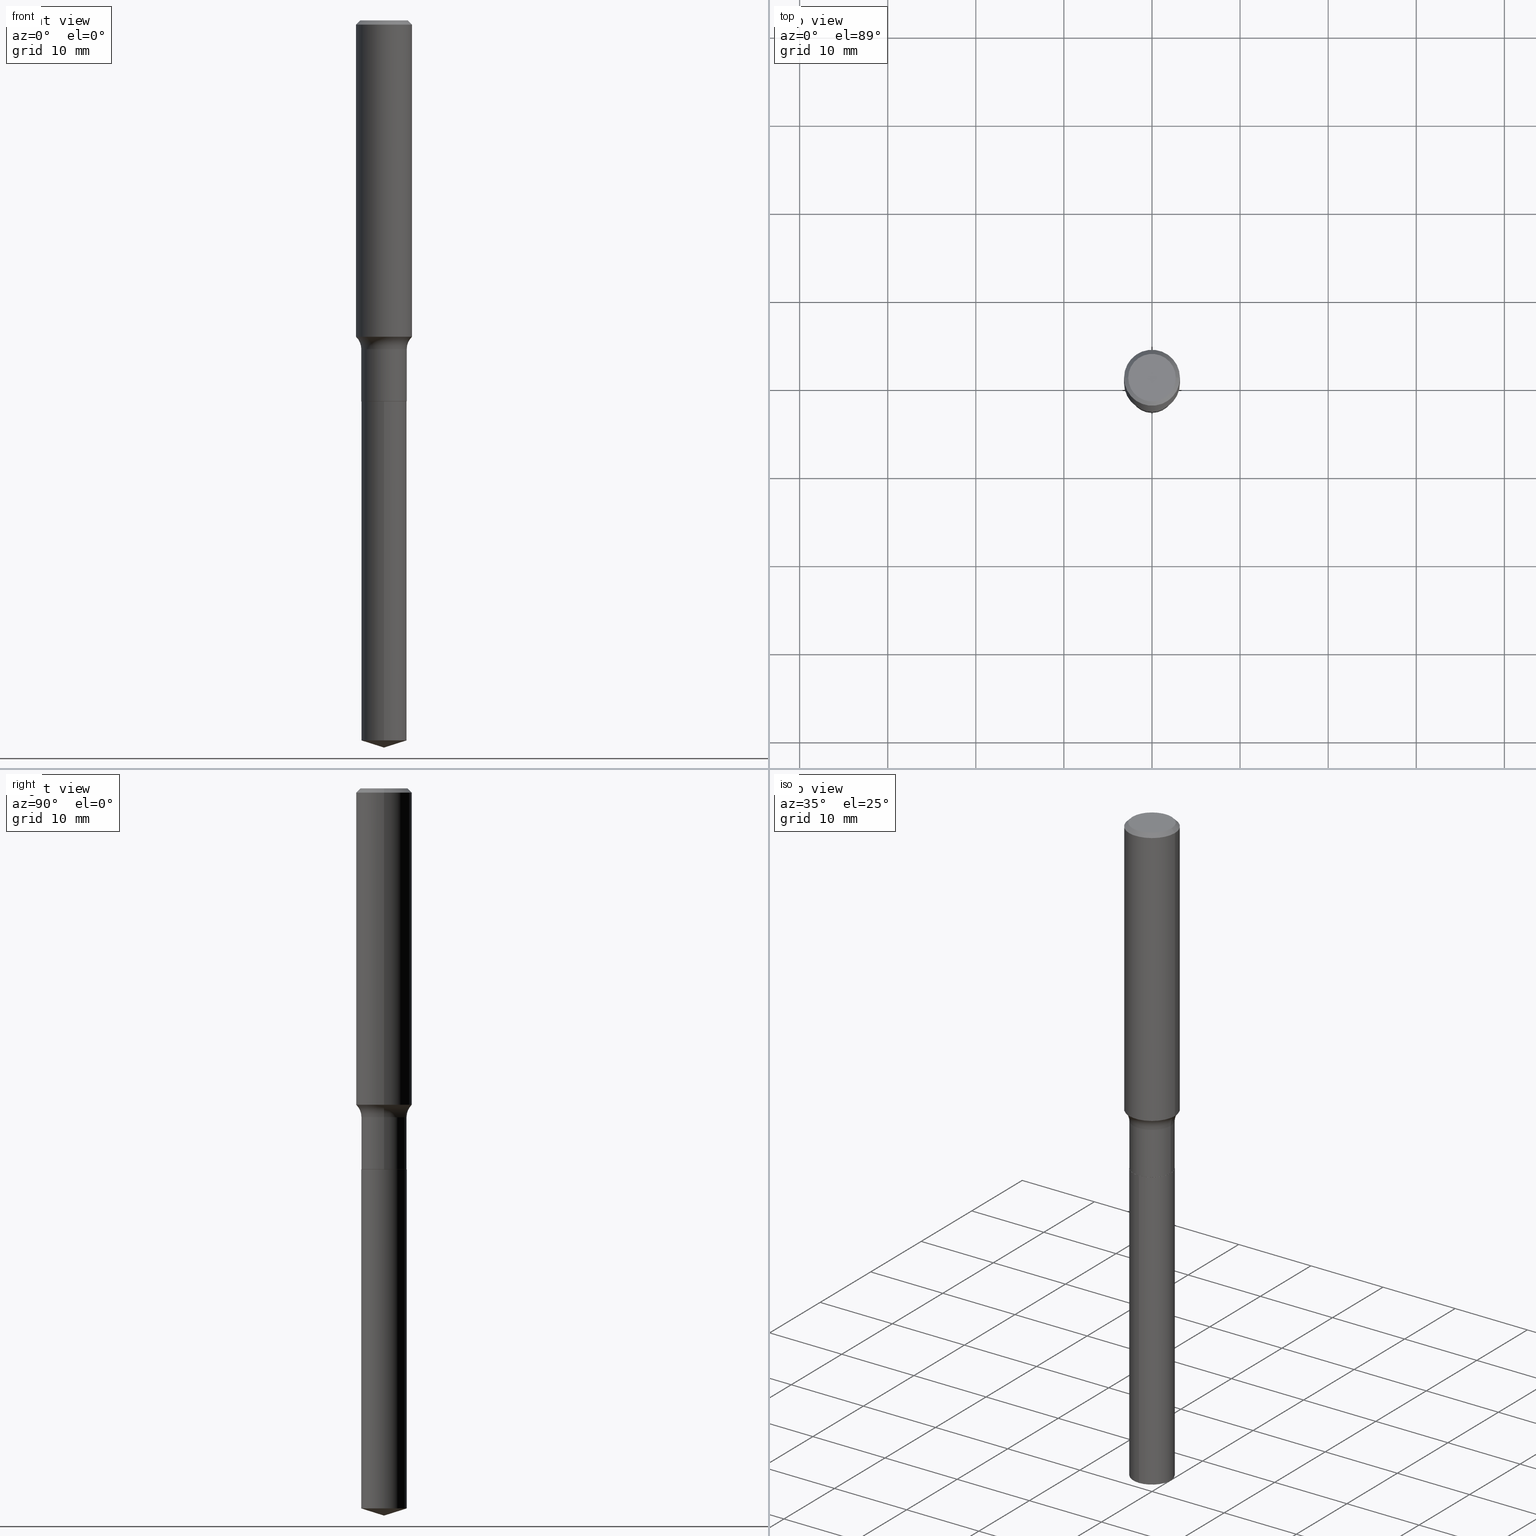
[diagram: canonical four-view strip — front | top / right | iso, engineering-drawing reading convention]
A machine part, canonical four-view strip (front | top / right | iso — engineering-drawing reading convention). The complete STEP part file that produces these views, byte-faithful:
ISO-10303-21;
HEADER;
FILE_DESCRIPTION (( 'STEP AP203' ),
    '1' );
FILE_NAME ('51507.STEP',
    '2024-04-19T12:54:41',
    ( '' ),
    ( '' ),
    'SwSTEP 2.0',
    'SolidWorks 2023',
    '' );
FILE_SCHEMA (( 'CONFIG_CONTROL_DESIGN' ));
ENDSEC;

DATA;
#1 = ORIENTED_EDGE ( 'NONE', *, *, #458, .F. ) ;
#2 = CLOSED_SHELL ( 'NONE', ( #253, #173, #60, #147, #306, #371, #158, #240, #369, #126, #263, #75 ) ) ;
#3 = AXIS2_PLACEMENT_3D ( 'NONE', #314, #171, #247 ) ;
#4 = EDGE_CURVE ( 'NONE', #477, #257, #153, .T. ) ;
#5 = DATE_AND_TIME ( #8, #450 ) ;
#6 = DIRECTION ( 'NONE',  ( -2.438500885569821195E-29, 3.501459797753689720E-15, 1.000000000000000000 ) ) ;
#7 = CC_DESIGN_PERSON_AND_ORGANIZATION_ASSIGNMENT ( #230, #345, ( #212 ) ) ;
#8 = CALENDAR_DATE ( 2024, 19, 4 ) ;
#9 = CARTESIAN_POINT ( 'NONE',  ( 3.593616410689058018E-29, -5.130731827430002515E-15, -1.469500000000000028 ) ) ;
#10 = ORIENTED_EDGE ( 'NONE', *, *, #172, .T. ) ;
#11 = DATE_AND_TIME ( #200, #486 ) ;
#12 = CARTESIAN_POINT ( 'NONE',  ( 4.164877923813906911E-29, -5.946341868183761325E-15, -1.703100000000000280 ) ) ;
#13 = VECTOR ( 'NONE', #408, 39.37007874015748854 ) ;
#14 = AXIS2_PLACEMENT_3D ( 'NONE', #73, #138, #259 ) ;
#15 = FACE_OUTER_BOUND ( 'NONE', #89, .T. ) ;
#16 = EDGE_CURVE ( 'NONE', #313, #393, #262, .T. ) ;
#17 = DIRECTION ( 'NONE',  ( 2.438500885569820634E-29, -3.501459797753689720E-15, -1.000000000000000000 ) ) ;
#18 = ORIENTED_EDGE ( 'NONE', *, *, #113, .F. ) ;
#19 = DIRECTION ( 'NONE',  ( -6.982962677686266711E-15, -1.000000000000000000, 3.491481338843145583E-15 ) ) ;
#20 = ORIENTED_EDGE ( 'NONE', *, *, #4, .T. ) ;
#21 = MANIFOLD_SOLID_BREP ( 'Body-Move/Copy2[1]', #332 ) ;
#22 = FACE_OUTER_BOUND ( 'NONE', #74, .T. ) ;
#23 = AXIS2_PLACEMENT_3D ( 'NONE', #356, #19, #208 ) ;
#24 = ORIENTED_EDGE ( 'NONE', *, *, #385, .T. ) ;
#25 = DIRECTION ( 'NONE',  ( -2.438500885569821195E-29, 3.501459797753689720E-15, 1.000000000000000000 ) ) ;
#26 = ORIENTED_EDGE ( 'NONE', *, *, #354, .T. ) ;
#27 = LINE ( 'NONE', #58, #154 ) ;
#28 = ORIENTED_EDGE ( 'NONE', *, *, #36, .F. ) ;
#29 = DATE_AND_TIME ( #295, #374 ) ;
#30 = AXIS2_PLACEMENT_3D ( 'NONE', #335, #77, #81 ) ;
#31 = VECTOR ( 'NONE', #95, 39.37007874015748143 ) ;
#32 = ORIENTED_EDGE ( 'NONE', *, *, #215, .T. ) ;
#33 = EDGE_CURVE ( 'NONE', #302, #244, #379, .T. ) ;
#34 = DIRECTION ( 'NONE',  ( 0.000000000000000000, 0.000000000000000000, 1.000000000000000000 ) ) ;
#35 = FACE_OUTER_BOUND ( 'NONE', #174, .T. ) ;
#36 = EDGE_CURVE ( 'NONE', #393, #433, #279, .T. ) ;
#37 = PLANE ( 'NONE',  #339 ) ;
#38 = DESIGN_CONTEXT ( 'detailed design', #186, 'design' ) ;
#39 = APPLICATION_PROTOCOL_DEFINITION ( 'international standard', 'config_control_design', 1994, #478 ) ;
#40 = CARTESIAN_POINT ( 'NONE',  ( 4.164877923813907472E-29, -5.946341868183762903E-15, -1.703100000000000502 ) ) ;
#41 = VECTOR ( 'NONE', #311, 39.37007874015748143 ) ;
#42 = CIRCLE ( 'NONE', #23, 0.07800000000000002764 ) ;
#43 = CARTESIAN_POINT ( 'NONE',  ( 7.925127878101919863E-29, -1.137974434269949129E-14, -3.250000000000000000 ) ) ;
#44 = EDGE_CURVE ( 'NONE', #433, #393, #448, .T. ) ;
#45 = ORIENTED_EDGE ( 'NONE', *, *, #334, .F. ) ;
#46 = CARTESIAN_POINT ( 'NONE',  ( 3.593616410689058018E-29, -5.130731827430002515E-15, -1.469500000000000028 ) ) ;
#47 = CARTESIAN_POINT ( 'NONE',  ( -0.1010500000000000009, -5.225689206524070655E-15, -1.703100000000000502 ) ) ;
#48 = CIRCLE ( 'NONE', #424, 0.1015500000000000014 ) ;
#49 = CARTESIAN_POINT ( 'NONE',  ( 0.1062499999999999972, -8.259777185439880671E-16, -3.903561672281638287E-17 ) ) ;
#50 = CARTESIAN_POINT ( 'NONE',  ( 4.163655189410814110E-29, -5.944596127514340611E-15, -1.702600000000000335 ) ) ;
#51 = DATE_TIME_ROLE ( 'classification_date' ) ;
#52 = CARTESIAN_POINT ( 'NONE',  ( 0.1015500000000000014, -6.653715987433380604E-15, -1.702600000000000335 ) ) ;
#53 = AXIS2_PLACEMENT_3D ( 'NONE', #110, #103, #150 ) ;
#54 = CARTESIAN_POINT ( 'NONE',  ( 4.773019151292986598E-46, -6.814606366898298634E-32, -1.951780836141093396E-17 ) ) ;
#55 = DIRECTION ( 'NONE',  ( -2.445468806185136877E-29, 3.491481338843145188E-15, 1.000000000000000000 ) ) ;
#56 = ORIENTED_EDGE ( 'NONE', *, *, #121, .F. ) ;
#57 = EDGE_CURVE ( 'NONE', #135, #100, #406, .T. ) ;
#58 = CARTESIAN_POINT ( 'NONE',  ( 0.1015499999999999875, -7.091198599190402890E-16, 4.951757515820772372E-30 ) ) ;
#59 = ORIENTED_EDGE ( 'NONE', *, *, #320, .T. ) ;
#60 = ADVANCED_FACE ( 'NONE', ( #488 ), #373, .T. ) ;
#61 = CIRCLE ( 'NONE', #176, 0.1015500000000000014 ) ;
#62 = DIRECTION ( 'NONE',  ( -2.438088387897960049E-29, 3.491481338843145188E-15, 1.000000000000000000 ) ) ;
#63 = ORIENTED_EDGE ( 'NONE', *, *, #492, .F. ) ;
#64 = FACE_OUTER_BOUND ( 'NONE', #436, .T. ) ;
#65 = ORIENTED_EDGE ( 'NONE', *, *, #354, .F. ) ;
#66 = CARTESIAN_POINT ( 'NONE',  ( 7.858917578729167832E-29, -1.125063821662293819E-14, -3.217981407989339626 ) ) ;
#67 = EDGE_LOOP ( 'NONE', ( #475, #180, #319 ) ) ;
#68 =( CONVERSION_BASED_UNIT ( 'INCH', #143 ) LENGTH_UNIT ( ) NAMED_UNIT ( #181 ) );
#69 = AXIS2_PLACEMENT_3D ( 'NONE', #260, #447, #453 ) ;
#70 = DIRECTION ( 'NONE',  ( -2.445468806185136877E-29, 3.491481338843145188E-15, 1.000000000000000000 ) ) ;
#71 = ORGANIZATION ( 'UNSPECIFIED', 'UNSPECIFIED', '' ) ;
#72 = FACE_OUTER_BOUND ( 'NONE', #441, .T. ) ;
#73 = CARTESIAN_POINT ( 'NONE',  ( 3.457276370714577820E-29, -4.936074384201103756E-15, -1.413747892416518992 ) ) ;
#74 = EDGE_LOOP ( 'NONE', ( #56, #397, #184 ) ) ;
#75 = ADVANCED_FACE ( 'NONE', ( #35 ), #303, .T. ) ;
#76 = DIRECTION ( 'NONE',  ( 1.000000000000000000, 0.000000000000000000, 0.000000000000000000 ) ) ;
#77 = DIRECTION ( 'NONE',  ( -2.445468806185136597E-29, 3.491481338843145583E-15, 1.000000000000000000 ) ) ;
#78 = VECTOR ( 'NONE', #70, 39.37007874015748143 ) ;
#79 = AXIS2_PLACEMENT_3D ( 'NONE', #323, #213, #362 ) ;
#80 = PERSON_AND_ORGANIZATION_ROLE ( 'creator' ) ;
#81 = DIRECTION ( 'NONE',  ( 1.000000000000000000, -6.982962677686266711E-15, 4.876176775795935793E-29 ) ) ;
#82 = CARTESIAN_POINT ( 'NONE',  ( -8.806697692912573961E-28, 1.264899979137297040E-13, 36.12007874015748143 ) ) ;
#83 = FACE_OUTER_BOUND ( 'NONE', #363, .T. ) ;
#84 = AXIS2_PLACEMENT_3D ( 'NONE', #430, #62, #97 ) ;
#85 = DIRECTION ( 'NONE',  ( 1.000000000000000000, -6.982962677686264344E-15, 0.000000000000000000 ) ) ;
#86 = CARTESIAN_POINT ( 'NONE',  ( 0.000000000000000000, 0.000000000000000000, 0.000000000000000000 ) ) ;
#87 = AXIS2_PLACEMENT_3D ( 'NONE', #46, #192, #483 ) ;
#88 = LINE ( 'NONE', #278, #258 ) ;
#89 = EDGE_LOOP ( 'NONE', ( #472, #443, #490, #365 ) ) ;
#90 = CARTESIAN_POINT ( 'NONE',  ( 0.1015499999999999736, -5.839851687349042508E-15, -1.469500000000000028 ) ) ;
#91 = EDGE_LOOP ( 'NONE', ( #222, #231, #481, #45 ) ) ;
#92 = CARTESIAN_POINT ( 'NONE',  ( -0.1010500000000000009, -5.228338433698181067E-15, -1.703100000000000502 ) ) ;
#93 = VERTEX_POINT ( 'NONE', #451 ) ;
#94 = CIRCLE ( 'NONE', #3, 0.1062499999999999972 ) ;
#95 = DIRECTION ( 'NONE',  ( -0.7071067811864267805, 7.493145998869918709E-15, 0.7071067811866682540 ) ) ;
#96 = ORIENTED_EDGE ( 'NONE', *, *, #33, .F. ) ;
#97 = DIRECTION ( 'NONE',  ( 1.000000000000000000, -6.982962677686265922E-15, 4.876176775795935793E-29 ) ) ;
#98 = ORIENTED_EDGE ( 'NONE', *, *, #419, .T. ) ;
#99 = APPROVAL_STATUS ( 'not_yet_approved' ) ;
#100 = VERTEX_POINT ( 'NONE', #269 ) ;
#101 = DIRECTION ( 'NONE',  ( 7.105427357601001859E-15, 1.000000000000000000, -3.491481338843145583E-15 ) ) ;
#102 = AXIS2_PLACEMENT_3D ( 'NONE', #105, #414, #405 ) ;
#103 = DIRECTION ( 'NONE',  ( -2.445468806185136597E-29, 3.491481338843145583E-15, 1.000000000000000000 ) ) ;
#104 = LOCAL_TIME ( 8, 54, 41.00000000000000000, #375 ) ;
#105 = CARTESIAN_POINT ( 'NONE',  ( 7.858917578729167832E-29, -1.125063821662293819E-14, -3.217981407989339626 ) ) ;
#106 = APPROVAL_STATUS ( 'not_yet_approved' ) ;
#107 = DIRECTION ( 'NONE',  ( -6.982962677686266711E-15, -1.000000000000000000, 2.690150658458161520E-15 ) ) ;
#108 = EDGE_CURVE ( 'NONE', #252, #368, #117, .T. ) ;
#109 = APPROVAL_ROLE ( '' ) ;
#110 = CARTESIAN_POINT ( 'NONE',  ( 4.585254011597162998E-31, -6.546527510330944066E-17, -0.01875000000000013115 ) ) ;
#111 = AXIS2_PLACEMENT_3D ( 'NONE', #9, #204, #351 ) ;
#112 = FACE_OUTER_BOUND ( 'NONE', #91, .T. ) ;
#113 = EDGE_CURVE ( 'NONE', #178, #302, #249, .T. ) ;
#114 = DIRECTION ( 'NONE',  ( -2.445468806185136597E-29, 3.491481338843145583E-15, 1.000000000000000000 ) ) ;
#115 = PERSON_AND_ORGANIZATION ( #294, #71 ) ;
#116 = CARTESIAN_POINT ( 'NONE',  ( 3.457276370714577820E-29, -4.936074384201103756E-15, -1.413747892416518992 ) ) ;
#117 = CIRCLE ( 'NONE', #87, 0.1015499999999999736 ) ;
#118 = CIRCLE ( 'NONE', #194, 0.1015500000000000291 ) ;
#119 = DATE_AND_TIME ( #377, #383 ) ;
#120 = CYLINDRICAL_SURFACE ( 'NONE', #423, 0.1250000000000000833 ) ;
#121 = EDGE_CURVE ( 'NONE', #438, #477, #229, .T. ) ;
#122 = COORDINATED_UNIVERSAL_TIME_OFFSET ( 5, 0, .BEHIND. ) ;
#123 = FACE_OUTER_BOUND ( 'NONE', #248, .T. ) ;
#124 = DIRECTION ( 'NONE',  ( -2.445468806185136597E-29, 3.491481338843145583E-15, 1.000000000000000000 ) ) ;
#125 = CIRCLE ( 'NONE', #415, 0.1062499999999999972 ) ;
#126 = ADVANCED_FACE ( 'NONE', ( #72 ), #37, .F. ) ;
#127 = DIRECTION ( 'NONE',  ( 6.776566513254261293E-15, 0.9537169507482294861, 0.3007057995042650700 ) ) ;
#128 = EDGE_LOOP ( 'NONE', ( #63, #1, #282, #130 ) ) ;
#129 = CARTESIAN_POINT ( 'NONE',  ( -0.1250000000000000000, -1.612591409952080429E-15, -0.01875000000000013115 ) ) ;
#130 = ORIENTED_EDGE ( 'NONE', *, *, #36, .T. ) ;
#131 = CARTESIAN_POINT ( 'NONE',  ( 4.164877923813906911E-29, -5.946341868183761325E-15, -1.703100000000000280 ) ) ;
#132 = ORIENTED_EDGE ( 'NONE', *, *, #108, .F. ) ;
#133 = VECTOR ( 'NONE', #457, 39.37007874015748143 ) ;
#134 = CARTESIAN_POINT ( 'NONE',  ( 0.000000000000000000, 0.000000000000000000, 0.000000000000000000 ) ) ;
#135 = VERTEX_POINT ( 'NONE', #425 ) ;
#136 = CC_DESIGN_PERSON_AND_ORGANIZATION_ASSIGNMENT ( #465, #342, ( #212 ) ) ;
#137 = ADVANCED_BREP_SHAPE_REPRESENTATION ( '51507', ( #21, #182, #485 ), #407 ) ;
#138 = DIRECTION ( 'NONE',  ( -2.445468806185136597E-29, 3.491481338843145583E-15, 1.000000000000000000 ) ) ;
#139 = ORIENTED_EDGE ( 'NONE', *, *, #458, .T. ) ;
#140 = EDGE_CURVE ( 'NONE', #93, #244, #395, .T. ) ;
#141 = COORDINATED_UNIVERSAL_TIME_OFFSET ( 5, 0, .BEHIND. ) ;
#142 = EDGE_LOOP ( 'NONE', ( #188, #284, #207, #246 ) ) ;
#143 = LENGTH_MEASURE_WITH_UNIT ( LENGTH_MEASURE( 0.02539999999999999897 ), #452 );
#144 = EDGE_CURVE ( 'NONE', #257, #135, #428, .T. ) ;
#145 = VECTOR ( 'NONE', #167, 39.37007874015748143 ) ;
#146 = ORIENTED_EDGE ( 'NONE', *, *, #266, .T. ) ;
#147 = ADVANCED_FACE ( 'NONE', ( #237 ), #226, .F. ) ;
#148 = EDGE_LOOP ( 'NONE', ( #479, #217, #98, #28 ) ) ;
#149 = PERSON_AND_ORGANIZATION_ROLE ( 'design_owner' ) ;
#150 = DIRECTION ( 'NONE',  ( 1.000000000000000000, -6.982962677686266711E-15, 0.000000000000000000 ) ) ;
#151 = APPROVAL ( #106, 'UNSPECIFIED' ) ;
#152 = CARTESIAN_POINT ( 'NONE',  ( -0.1062499999999999972, 7.746724220558198188E-16, -3.903561672282716808E-17 ) ) ;
#153 = CIRCLE ( 'NONE', #102, 0.1015500000000000291 ) ;
#154 = VECTOR ( 'NONE', #55, 39.37007874015748143 ) ;
#155 = SECURITY_CLASSIFICATION_LEVEL ( 'unclassified' ) ;
#156 = CARTESIAN_POINT ( 'NONE',  ( -0.1015499999999999736, -4.816107829307788434E-15, -1.469500000000000028 ) ) ;
#157 = CARTESIAN_POINT ( 'NONE',  ( 4.585254011597162998E-31, -6.546527510330944066E-17, -0.01875000000000013115 ) ) ;
#158 = ADVANCED_FACE ( 'NONE', ( #15 ), #396, .F. ) ;
#159 = CYLINDRICAL_SURFACE ( 'NONE', #484, 0.1015500000000000014 ) ;
#160 = AXIS2_PLACEMENT_3D ( 'NONE', #399, #245, #476 ) ;
#161 = DIRECTION ( 'NONE',  ( -2.445468806185136597E-29, 3.491481338843145583E-15, 1.000000000000000000 ) ) ;
#162 = DIRECTION ( 'NONE',  ( 6.982962677686265922E-15, 1.000000000000000000, -3.501459797753689720E-15 ) ) ;
#163 = CARTESIAN_POINT ( 'NONE',  ( 0.1250000000000000833, -8.728703347107839305E-16, 6.095220969744923945E-30 ) ) ;
#164 = VERTEX_POINT ( 'NONE', #152 ) ;
#165 = VECTOR ( 'NONE', #285, 39.37007874015748143 ) ;
#166 = APPROVAL_PERSON_ORGANIZATION ( #115, #390, #421 ) ;
#167 = DIRECTION ( 'NONE',  ( -2.445468806185136877E-29, 3.491481338843145188E-15, 1.000000000000000000 ) ) ;
#168 = ORIENTED_EDGE ( 'NONE', *, *, #190, .T. ) ;
#169 = DIRECTION ( 'NONE',  ( -6.982962677686265922E-15, -1.000000000000000000, 5.380301316916322250E-15 ) ) ;
#170 = ORIENTED_EDGE ( 'NONE', *, *, #201, .F. ) ;
#171 = DIRECTION ( 'NONE',  ( -2.445468806185136597E-29, 3.491481338843145583E-15, 1.000000000000000000 ) ) ;
#172 = EDGE_CURVE ( 'NONE', #93, #252, #343, .T. ) ;
#173 = ADVANCED_FACE ( 'NONE', ( #112 ), #210, .T. ) ;
#174 = EDGE_LOOP ( 'NONE', ( #65, #445, #418, #286 ) ) ;
#175 = AXIS2_PLACEMENT_3D ( 'NONE', #296, #300, #265 ) ;
#176 = AXIS2_PLACEMENT_3D ( 'NONE', #50, #429, #384 ) ;
#177 = CARTESIAN_POINT ( 'NONE',  ( 0.1250000000000000000, -9.230275248247509846E-16, -0.01875000000000013115 ) ) ;
#178 = VERTEX_POINT ( 'NONE', #47 ) ;
#179 = DIRECTION ( 'NONE',  ( 1.000000000000000000, -6.982962677686266711E-15, 0.000000000000000000 ) ) ;
#180 = ORIENTED_EDGE ( 'NONE', *, *, #121, .T. ) ;
#181 = DIMENSIONAL_EXPONENTS ( 1.000000000000000000, 0.000000000000000000, 0.000000000000000000, 0.000000000000000000, 0.000000000000000000, 0.000000000000000000, 0.000000000000000000 ) ;
#182 = MANIFOLD_SOLID_BREP ( 'Body-Move/Copy2[2]', #2 ) ;
#183 = CARTESIAN_POINT ( 'NONE',  ( -7.091198599189617973E-16, -0.1015500000000112701, -3.217981407989339182 ) ) ;
#184 = ORIENTED_EDGE ( 'NONE', *, *, #4, .F. ) ;
#185 = VECTOR ( 'NONE', #127, 39.37007874015748854 ) ;
#186 = APPLICATION_CONTEXT ( 'configuration controlled 3d designs of mechanical parts and assemblies' ) ;
#187 = SECURITY_CLASSIFICATION ( '', '', #155 ) ;
#188 = ORIENTED_EDGE ( 'NONE', *, *, #434, .T. ) ;
#189 = CARTESIAN_POINT ( 'NONE',  ( 0.000000000000000000, 0.000000000000000000, 0.000000000000000000 ) ) ;
#190 = EDGE_CURVE ( 'NONE', #302, #178, #333, .T. ) ;
#191 = DIRECTION ( 'NONE',  ( -2.445468806185136597E-29, 3.491481338843145583E-15, 1.000000000000000000 ) ) ;
#192 = DIRECTION ( 'NONE',  ( -2.445468806185136597E-29, 3.491481338843145583E-15, 1.000000000000000000 ) ) ;
#193 = DIRECTION ( 'NONE',  ( 1.000000000000000000, -6.982962677686269077E-15, 0.000000000000000000 ) ) ;
#194 = AXIS2_PLACEMENT_3D ( 'NONE', #66, #25, #169 ) ;
#195 = CC_DESIGN_APPROVAL ( #390, ( #187 ) ) ;
#196 = DIRECTION ( 'NONE',  ( -2.445468806185136597E-29, 3.491481338843145583E-15, 1.000000000000000000 ) ) ;
#197 = ORIENTED_EDGE ( 'NONE', *, *, #426, .F. ) ;
#198 = EDGE_CURVE ( 'NONE', #244, #93, #61, .T. ) ;
#199 = CARTESIAN_POINT ( 'NONE',  ( 4.164877923813907472E-29, -5.946341868183762903E-15, -1.703100000000000502 ) ) ;
#200 = CALENDAR_DATE ( 2024, 19, 4 ) ;
#201 = EDGE_CURVE ( 'NONE', #313, #331, #211, .T. ) ;
#202 = FACE_OUTER_BOUND ( 'NONE', #67, .T. ) ;
#203 = VECTOR ( 'NONE', #224, 39.37007874015748143 ) ;
#204 = DIRECTION ( 'NONE',  ( -2.445468806185136597E-29, 3.491481338843145583E-15, 1.000000000000000000 ) ) ;
#205 = APPROVAL ( #99, 'UNSPECIFIED' ) ;
#206 = CARTESIAN_POINT ( 'NONE',  ( -0.1250000000000001943, -4.047895964500976946E-15, -1.413747892416518992 ) ) ;
#207 = ORIENTED_EDGE ( 'NONE', *, *, #44, .F. ) ;
#208 = DIRECTION ( 'NONE',  ( 1.000000000000000000, -6.982962677686268288E-15, 0.000000000000000000 ) ) ;
#209 = ORIENTED_EDGE ( 'NONE', *, *, #381, .F. ) ;
#210 = CONICAL_SURFACE ( 'NONE', #469, 0.1250000000000000000, 0.7853981633974459475 ) ;
#211 = CIRCLE ( 'NONE', #360, 0.1250000000000001665 ) ;
#212 = PRODUCT_DEFINITION_FORMATION_WITH_SPECIFIED_SOURCE ( 'ANY', '', #361, .NOT_KNOWN. ) ;
#213 = DIRECTION ( 'NONE',  ( -2.445468806185136597E-29, 3.491481338843145583E-15, 1.000000000000000000 ) ) ;
#214 = EDGE_LOOP ( 'NONE', ( #20, #293, #344, #209 ) ) ;
#215 = EDGE_CURVE ( 'NONE', #100, #135, #48, .T. ) ;
#216 = DIRECTION ( 'NONE',  ( -2.438500885569821195E-29, 3.501459797753689720E-15, 1.000000000000000000 ) ) ;
#217 = ORIENTED_EDGE ( 'NONE', *, *, #201, .T. ) ;
#218 = FACE_OUTER_BOUND ( 'NONE', #290, .T. ) ;
#219 = VERTEX_POINT ( 'NONE', #49 ) ;
#220 = DIRECTION ( 'NONE',  ( -2.438500885569821195E-29, 3.501459797753689720E-15, 1.000000000000000000 ) ) ;
#221 =( NAMED_UNIT ( * ) PLANE_ANGLE_UNIT ( ) SI_UNIT ( $, .RADIAN. ) );
#222 = ORIENTED_EDGE ( 'NONE', *, *, #266, .F. ) ;
#223 = UNCERTAINTY_MEASURE_WITH_UNIT (LENGTH_MEASURE( 1.000000000000000082E-05 ), #68, 'distance_accuracy_value', 'NONE');
#224 = DIRECTION ( 'NONE',  ( 0.7071067811865459074, -7.319954787623251312E-15, -0.7071067811865492381 ) ) ;
#225 = CARTESIAN_POINT ( 'NONE',  ( 0.1010500000000000009, -6.651970246763959889E-15, -1.703100000000000502 ) ) ;
#226 = TOROIDAL_SURFACE ( 'NONE', #309, 0.1795499999999999596, 0.07800000000000002764 ) ;
#227 = CARTESIAN_POINT ( 'NONE',  ( 3.593616410689058018E-29, -5.130731827430002515E-15, -1.469500000000000028 ) ) ;
#228 = CIRCLE ( 'NONE', #14, 0.1250000000000001665 ) ;
#229 = LINE ( 'NONE', #376, #13 ) ;
#230 = PERSON_AND_ORGANIZATION ( #294, #71 ) ;
#231 = ORIENTED_EDGE ( 'NONE', *, *, #492, .T. ) ;
#232 = DIRECTION ( 'NONE',  ( -1.000000000000000000, 6.982962677686265922E-15, -4.876176775795935793E-29 ) ) ;
#233 = ADVANCED_FACE ( 'NONE', ( #346 ), #159, .T. ) ;
#234 = DIRECTION ( 'NONE',  ( -2.445468806185136597E-29, 3.491481338843145583E-15, 1.000000000000000000 ) ) ;
#235 = AXIS2_PLACEMENT_3D ( 'NONE', #40, #191, #329 ) ;
#236 = AXIS2_PLACEMENT_3D ( 'NONE', #82, #6, #349 ) ;
#237 = FACE_OUTER_BOUND ( 'NONE', #328, .T. ) ;
#238 = PERSON_AND_ORGANIZATION_ROLE ( 'classification_officer' ) ;
#239 = DIRECTION ( 'NONE',  ( -6.982962677686266711E-15, -1.000000000000000000, 2.690150658458161520E-15 ) ) ;
#240 = ADVANCED_FACE ( 'NONE', ( #304 ), #120, .T. ) ;
#241 = DIRECTION ( 'NONE',  ( -2.445468806185136597E-29, 3.491481338843145583E-15, 1.000000000000000000 ) ) ;
#242 = AXIS2_PLACEMENT_3D ( 'NONE', #131, #467, #439 ) ;
#243 = DIRECTION ( 'NONE',  ( -6.982962677686265922E-15, -1.000000000000000000, 3.500519750498677611E-15 ) ) ;
#244 = VERTEX_POINT ( 'NONE', #52 ) ;
#245 = DIRECTION ( 'NONE',  ( 2.445468806185136597E-29, -3.491481338843145583E-15, -1.000000000000000000 ) ) ;
#246 = ORIENTED_EDGE ( 'NONE', *, *, #419, .F. ) ;
#247 = DIRECTION ( 'NONE',  ( 1.000000000000000000, -6.982962677686266711E-15, 4.874146000987428094E-29 ) ) ;
#248 = EDGE_LOOP ( 'NONE', ( #168, #26, #403, #96 ) ) ;
#249 = CIRCLE ( 'NONE', #69, 0.1010500000000000009 ) ;
#250 = ADVANCED_FACE ( 'NONE', ( #202 ), #449, .T. ) ;
#251 = FACE_OUTER_BOUND ( 'NONE', #353, .T. ) ;
#252 = VERTEX_POINT ( 'NONE', #156 ) ;
#253 = ADVANCED_FACE ( 'NONE', ( #123 ), #382, .T. ) ;
#254 = CYLINDRICAL_SURFACE ( 'NONE', #367, 0.1015499999999999875 ) ;
#255 = ORIENTED_EDGE ( 'NONE', *, *, #172, .F. ) ;
#256 = DIRECTION ( 'NONE',  ( 1.000000000000000000, -6.982962677686266711E-15, 4.874146000987428094E-29 ) ) ;
#257 = VERTEX_POINT ( 'NONE', #422 ) ;
#258 = VECTOR ( 'NONE', #216, 39.37007874015748143 ) ;
#259 = DIRECTION ( 'NONE',  ( 1.000000000000000000, -6.982962677686269077E-15, 0.000000000000000000 ) ) ;
#260 = CARTESIAN_POINT ( 'NONE',  ( 4.164877923813907472E-29, -5.946341868183762903E-15, -1.703100000000000502 ) ) ;
#261 = DIRECTION ( 'NONE',  ( -2.445468806185136597E-29, 3.491481338843145583E-15, 1.000000000000000000 ) ) ;
#262 = LINE ( 'NONE', #298, #78 ) ;
#263 = ADVANCED_FACE ( 'NONE', ( #83 ), #394, .F. ) ;
#264 = DATE_AND_TIME ( #417, #104 ) ;
#265 = DIRECTION ( 'NONE',  ( 1.000000000000000000, -6.982962677686266711E-15, 0.000000000000000000 ) ) ;
#266 = EDGE_CURVE ( 'NONE', #219, #164, #94, .T. ) ;
#267 = VECTOR ( 'NONE', #338, 39.37007874015748143 ) ;
#268 = CARTESIAN_POINT ( 'NONE',  ( 0.1250000000000000000, -9.383356098140928781E-16, -0.01875000000000013115 ) ) ;
#269 = CARTESIAN_POINT ( 'NONE',  ( -7.091198599189987752E-16, -0.1015500000000059549, -1.703099999999999836 ) ) ;
#270 = DIRECTION ( 'NONE',  ( 2.438088387897960049E-29, -3.491481338843145188E-15, -1.000000000000000000 ) ) ;
#271 = APPROVAL_DATE_TIME ( #119, #205 ) ;
#272 = DIRECTION ( 'NONE',  ( 1.000000000000000000, -6.982962677686269077E-15, 0.000000000000000000 ) ) ;
#273 = SHAPE_DEFINITION_REPRESENTATION ( #355, #137 ) ;
#274 = DIRECTION ( 'NONE',  ( -2.438500885569821195E-29, 3.501459797753689720E-15, 1.000000000000000000 ) ) ;
#275 = CARTESIAN_POINT ( 'NONE',  ( -0.1015499999999999875, 7.215561481643816499E-16, -4.995178584153856401E-30 ) ) ;
#276 = PERSON_AND_ORGANIZATION ( #294, #71 ) ;
#277 = CARTESIAN_POINT ( 'NONE',  ( 7.215561481644232623E-16, 0.1015499999999940617, -1.703100000000000502 ) ) ;
#278 = CARTESIAN_POINT ( 'NONE',  ( -7.091198599189987752E-16, -0.1015500000000059549, -1.703099999999999836 ) ) ;
#279 = CIRCLE ( 'NONE', #53, 0.1250000000000000000 ) ;
#280 = AXIS2_PLACEMENT_3D ( 'NONE', #289, #442, #243 ) ;
#281 = PLANE ( 'NONE',  #463 ) ;
#282 = ORIENTED_EDGE ( 'NONE', *, *, #334, .T. ) ;
#283 = CYLINDRICAL_SURFACE ( 'NONE', #242, 0.1015500000000000014 ) ;
#284 = ORIENTED_EDGE ( 'NONE', *, *, #16, .T. ) ;
#285 = DIRECTION ( 'NONE',  ( -0.7071067811865459074, 2.468850131082239706E-15, -0.7071067811865492381 ) ) ;
#286 = ORIENTED_EDGE ( 'NONE', *, *, #140, .F. ) ;
#287 = AXIS2_PLACEMENT_3D ( 'NONE', #336, #220, #107 ) ;
#288 = AXIS2_PLACEMENT_3D ( 'NONE', #410, #101, #444 ) ;
#289 = CARTESIAN_POINT ( 'NONE',  ( -8.806697692912573961E-28, 1.264899979137297040E-13, 36.12007874015748143 ) ) ;
#290 = EDGE_LOOP ( 'NONE', ( #32, #455 ) ) ;
#291 = PRODUCT_RELATED_PRODUCT_CATEGORY ( 'detail', '', ( #361 ) ) ;
#292 = PERSON_AND_ORGANIZATION ( #294, #71 ) ;
#293 = ORIENTED_EDGE ( 'NONE', *, *, #144, .T. ) ;
#294 = PERSON ( 'UNSPECIFIED', 'UNSPECIFIED', 'UNSPECIFIED', ('UNSPECIFIED'), ('UNSPECIFIED'), ('UNSPECIFIED') ) ;
#295 = CALENDAR_DATE ( 2024, 19, 4 ) ;
#296 = CARTESIAN_POINT ( 'NONE',  ( 4.585254011597162998E-31, -6.546527510330944066E-17, -0.01875000000000013115 ) ) ;
#297 = CIRCLE ( 'NONE', #288, 0.07800000000000002764 ) ;
#298 = CARTESIAN_POINT ( 'NONE',  ( -0.1250000000000000833, 8.881784197001258240E-16, -6.148668862818636431E-30 ) ) ;
#299 = APPLICATION_PROTOCOL_DEFINITION ( 'international standard', 'config_control_design', 1994, #186 ) ;
#300 = DIRECTION ( 'NONE',  ( -2.445468806185136597E-29, 3.491481338843145583E-15, 1.000000000000000000 ) ) ;
#301 = PERSON_AND_ORGANIZATION ( #294, #71 ) ;
#302 = VERTEX_POINT ( 'NONE', #389 ) ;
#303 = CONICAL_SURFACE ( 'NONE', #235, 0.1010500000000000009, 0.7853981633972775267 ) ;
#304 = FACE_OUTER_BOUND ( 'NONE', #148, .T. ) ;
#305 = CARTESIAN_POINT ( 'NONE',  ( 4.164877923813907472E-29, -5.946341868183762903E-15, -1.703100000000000502 ) ) ;
#306 = ADVANCED_FACE ( 'NONE', ( #251 ), #468, .T. ) ;
#307 = DIRECTION ( 'NONE',  ( 2.445468806185136597E-29, -3.491481338843145583E-15, -1.000000000000000000 ) ) ;
#308 = DIRECTION ( 'NONE',  ( -2.438500885569821195E-29, 3.501459797753689720E-15, 1.000000000000000000 ) ) ;
#309 = AXIS2_PLACEMENT_3D ( 'NONE', #464, #234, #466 ) ;
#310 = CC_DESIGN_SECURITY_CLASSIFICATION ( #187, ( #212 ) ) ;
#311 = DIRECTION ( 'NONE',  ( -2.438500885569821195E-29, 3.501459797753689720E-15, 1.000000000000000000 ) ) ;
#312 = FACE_OUTER_BOUND ( 'NONE', #411, .T. ) ;
#313 = VERTEX_POINT ( 'NONE', #206 ) ;
#314 = CARTESIAN_POINT ( 'NONE',  ( 9.546038302585973196E-46, -1.362921273379659727E-31, -3.903561672282186792E-17 ) ) ;
#315 = ORIENTED_EDGE ( 'NONE', *, *, #108, .T. ) ;
#316 = AXIS2_PLACEMENT_3D ( 'NONE', #305, #114, #272 ) ;
#317 = APPROVAL_PERSON_ORGANIZATION ( #301, #151, #109 ) ;
#318 = CARTESIAN_POINT ( 'NONE',  ( 0.1250000000000001943, -5.808944718911887884E-15, -1.413747892416518992 ) ) ;
#319 = ORIENTED_EDGE ( 'NONE', *, *, #320, .F. ) ;
#320 = EDGE_CURVE ( 'NONE', #257, #477, #118, .T. ) ;
#321 = LINE ( 'NONE', #435, #185 ) ;
#322 = ORIENTED_EDGE ( 'NONE', *, *, #381, .T. ) ;
#323 = CARTESIAN_POINT ( 'NONE',  ( 0.000000000000000000, 0.000000000000000000, 0.000000000000000000 ) ) ;
#324 = ORIENTED_EDGE ( 'NONE', *, *, #190, .F. ) ;
#325 = AXIS2_PLACEMENT_3D ( 'NONE', #199, #161, #459 ) ;
#326 = CC_DESIGN_APPROVAL ( #151, ( #378 ) ) ;
#327 = DATE_TIME_ROLE ( 'creation_date' ) ;
#328 = EDGE_LOOP ( 'NONE', ( #170, #370, #315, #359 ) ) ;
#329 = DIRECTION ( 'NONE',  ( 1.000000000000000000, -6.982962677686269077E-15, 0.000000000000000000 ) ) ;
#330 = DIRECTION ( 'NONE',  ( -2.445468806185136597E-29, 3.491481338843145583E-15, 1.000000000000000000 ) ) ;
#331 = VERTEX_POINT ( 'NONE', #318 ) ;
#332 = CLOSED_SHELL ( 'NONE', ( #233, #398, #250, #352, #348 ) ) ;
#333 = CIRCLE ( 'NONE', #325, 0.1010500000000000009 ) ;
#334 = EDGE_CURVE ( 'NONE', #164, #393, #364, .T. ) ;
#335 = CARTESIAN_POINT ( 'NONE',  ( 0.000000000000000000, 0.000000000000000000, 0.000000000000000000 ) ) ;
#336 = CARTESIAN_POINT ( 'NONE',  ( 4.164877923813906911E-29, -5.946341868183761325E-15, -1.703100000000000280 ) ) ;
#337 = EDGE_CURVE ( 'NONE', #438, #257, #321, .T. ) ;
#338 = DIRECTION ( 'NONE',  ( 0.7071067811864267805, -2.468850131080992517E-15, 0.7071067811866682540 ) ) ;
#339 = AXIS2_PLACEMENT_3D ( 'NONE', #54, #270, #232 ) ;
#340 = CIRCLE ( 'NONE', #440, 0.1015499999999999736 ) ;
#341 = DIRECTION ( 'NONE',  ( -6.982962677686266711E-15, -1.000000000000000000, 2.690150658458161520E-15 ) ) ;
#342 = PERSON_AND_ORGANIZATION_ROLE ( 'creator' ) ;
#343 = LINE ( 'NONE', #275, #133 ) ;
#344 = ORIENTED_EDGE ( 'NONE', *, *, #215, .F. ) ;
#345 = PERSON_AND_ORGANIZATION_ROLE ( 'design_supplier' ) ;
#346 = FACE_OUTER_BOUND ( 'NONE', #214, .T. ) ;
#347 = APPROVAL_DATE_TIME ( #11, #390 ) ;
#348 = ADVANCED_FACE ( 'NONE', ( #218 ), #281, .F. ) ;
#349 = DIRECTION ( 'NONE',  ( -6.982962677686265922E-15, -1.000000000000000000, 3.500519750498677611E-15 ) ) ;
#350 = CONICAL_SURFACE ( 'NONE', #280, 124.8659371009160282, 1.265363707695893902 ) ;
#351 = DIRECTION ( 'NONE',  ( 1.000000000000000000, -6.982962677686264344E-15, 4.883557194083112340E-29 ) ) ;
#352 = ADVANCED_FACE ( 'NONE', ( #312 ), #283, .T. ) ;
#353 = EDGE_LOOP ( 'NONE', ( #400, #10, #197, #357 ) ) ;
#354 = EDGE_CURVE ( 'NONE', #178, #93, #437, .T. ) ;
#355 = PRODUCT_DEFINITION_SHAPE ( 'NONE', 'NONE',  #378 ) ;
#356 = CARTESIAN_POINT ( 'NONE',  ( 0.1795499999999999596, -6.384522776208571343E-15, -1.469500000000000028 ) ) ;
#357 = ORIENTED_EDGE ( 'NONE', *, *, #385, .F. ) ;
#358 = LINE ( 'NONE', #163, #145 ) ;
#359 = ORIENTED_EDGE ( 'NONE', *, *, #412, .F. ) ;
#360 = AXIS2_PLACEMENT_3D ( 'NONE', #116, #241, #193 ) ;
#361 = PRODUCT ( '51507', '51507', '', ( #487 ) ) ;
#362 = DIRECTION ( 'NONE',  ( 1.000000000000000000, -6.982962677686266711E-15, 4.876176775795935793E-29 ) ) ;
#363 = EDGE_LOOP ( 'NONE', ( #324, #18 ) ) ;
#364 = LINE ( 'NONE', #402, #165 ) ;
#365 = ORIENTED_EDGE ( 'NONE', *, *, #426, .T. ) ;
#366 = ORIENTED_EDGE ( 'NONE', *, *, #144, .F. ) ;
#367 = AXIS2_PLACEMENT_3D ( 'NONE', #134, #124, #392 ) ;
#368 = VERTEX_POINT ( 'NONE', #90 ) ;
#369 = ADVANCED_FACE ( 'NONE', ( #473 ), #431, .T. ) ;
#370 = ORIENTED_EDGE ( 'NONE', *, *, #474, .T. ) ;
#371 = ADVANCED_FACE ( 'NONE', ( #64 ), #254, .T. ) ;
#372 =( NAMED_UNIT ( * ) SI_UNIT ( $, .STERADIAN. ) SOLID_ANGLE_UNIT ( ) );
#373 = CYLINDRICAL_SURFACE ( 'NONE', #30, 0.1250000000000000833 ) ;
#374 = LOCAL_TIME ( 8, 54, 41.00000000000000000, #141 ) ;
#375 = COORDINATED_UNIVERSAL_TIME_OFFSET ( 5, 0, .BEHIND. ) ;
#376 = CARTESIAN_POINT ( 'NONE',  ( 7.925127878101919863E-29, -1.137974434269949129E-14, -3.250000000000000000 ) ) ;
#377 = CALENDAR_DATE ( 2024, 19, 4 ) ;
#378 = PRODUCT_DEFINITION ( 'UNKNOWN', '', #212, #38 ) ;
#379 = LINE ( 'NONE', #225, #267 ) ;
#380 = DIRECTION ( 'NONE',  ( -1.000000000000000000, 6.982962677686266711E-15, 0.000000000000000000 ) ) ;
#381 = EDGE_CURVE ( 'NONE', #477, #100, #88, .T. ) ;
#382 = CONICAL_SURFACE ( 'NONE', #316, 0.1010500000000000009, 0.7853981633972775267 ) ;
#383 = LOCAL_TIME ( 8, 54, 41.00000000000000000, #386 ) ;
#384 = DIRECTION ( 'NONE',  ( 1.000000000000000000, -6.982962677686264344E-15, 0.000000000000000000 ) ) ;
#385 = EDGE_CURVE ( 'NONE', #244, #368, #27, .T. ) ;
#386 = COORDINATED_UNIVERSAL_TIME_OFFSET ( 5, 0, .BEHIND. ) ;
#387 = DIRECTION ( 'NONE',  ( 1.000000000000000000, -6.982962677686266711E-15, 4.876176775795935793E-29 ) ) ;
#388 = DIRECTION ( 'NONE',  ( -2.445468806185136597E-29, 3.491481338843145583E-15, 1.000000000000000000 ) ) ;
#389 = CARTESIAN_POINT ( 'NONE',  ( 0.1010500000000000009, -6.651970246763959889E-15, -1.703100000000000502 ) ) ;
#390 = APPROVAL ( #427, 'UNSPECIFIED' ) ;
#391 = ORIENTED_EDGE ( 'NONE', *, *, #57, .F. ) ;
#392 = DIRECTION ( 'NONE',  ( 1.000000000000000000, -6.982962677686266711E-15, 4.876176775795935793E-29 ) ) ;
#393 = VERTEX_POINT ( 'NONE', #129 ) ;
#394 = PLANE ( 'NONE',  #84 ) ;
#395 = CIRCLE ( 'NONE', #462, 0.1015500000000000014 ) ;
#396 = TOROIDAL_SURFACE ( 'NONE', #111, 0.1795499999999999596, 0.07800000000000002764 ) ;
#397 = ORIENTED_EDGE ( 'NONE', *, *, #337, .T. ) ;
#398 = ADVANCED_FACE ( 'NONE', ( #22 ), #350, .T. ) ;
#399 = CARTESIAN_POINT ( 'NONE',  ( 4.585254011597162998E-31, -6.546527510330944066E-17, -0.01875000000000013115 ) ) ;
#400 = ORIENTED_EDGE ( 'NONE', *, *, #198, .T. ) ;
#401 = CC_DESIGN_PERSON_AND_ORGANIZATION_ASSIGNMENT ( #276, #238, ( #187 ) ) ;
#402 = CARTESIAN_POINT ( 'NONE',  ( -0.1250000000000000000, 8.074050596074738982E-16, -0.01875000000000013115 ) ) ;
#403 = ORIENTED_EDGE ( 'NONE', *, *, #198, .F. ) ;
#404 = APPROVAL_ROLE ( '' ) ;
#405 = DIRECTION ( 'NONE',  ( -6.982962677686265922E-15, -1.000000000000000000, 5.380301316916322250E-15 ) ) ;
#406 = CIRCLE ( 'NONE', #287, 0.1015500000000000014 ) ;
#407 =( GEOMETRIC_REPRESENTATION_CONTEXT ( 3 ) GLOBAL_UNCERTAINTY_ASSIGNED_CONTEXT ( ( #223 ) ) GLOBAL_UNIT_ASSIGNED_CONTEXT ( ( #68, #221, #372 ) ) REPRESENTATION_CONTEXT ( 'NONE', 'WORKASPACE' ) );
#408 = DIRECTION ( 'NONE',  ( -6.659769872151636033E-15, -0.9537169507482272657, 0.3007057995042716758 ) ) ;
#409 = CC_DESIGN_DATE_AND_TIME_ASSIGNMENT ( #5, #51, ( #187 ) ) ;
#410 = CARTESIAN_POINT ( 'NONE',  ( -0.1795499999999999596, -3.854952345372742721E-15, -1.469500000000000028 ) ) ;
#411 = EDGE_LOOP ( 'NONE', ( #366, #59, #322, #391 ) ) ;
#412 = EDGE_CURVE ( 'NONE', #331, #368, #42, .T. ) ;
#413 = APPROVAL_DATE_TIME ( #264, #151 ) ;
#414 = DIRECTION ( 'NONE',  ( -2.438500885569821195E-29, 3.501459797753689720E-15, 1.000000000000000000 ) ) ;
#415 = AXIS2_PLACEMENT_3D ( 'NONE', #446, #330, #256 ) ;
#416 = CC_DESIGN_APPROVAL ( #205, ( #212 ) ) ;
#417 = CALENDAR_DATE ( 2024, 19, 4 ) ;
#418 = ORIENTED_EDGE ( 'NONE', *, *, #33, .T. ) ;
#419 = EDGE_CURVE ( 'NONE', #331, #433, #358, .T. ) ;
#420 = CARTESIAN_POINT ( 'NONE',  ( 4.164877923813906911E-29, -5.946341868183761325E-15, -1.703100000000000280 ) ) ;
#421 = APPROVAL_ROLE ( '' ) ;
#422 = CARTESIAN_POINT ( 'NONE',  ( 7.215561481644602402E-16, 0.1015499999999887326, -3.217981407989340514 ) ) ;
#423 = AXIS2_PLACEMENT_3D ( 'NONE', #86, #388, #387 ) ;
#424 = AXIS2_PLACEMENT_3D ( 'NONE', #12, #274, #341 ) ;
#425 = CARTESIAN_POINT ( 'NONE',  ( 7.215561481644606346E-16, 0.1015499999999940617, -1.703100000000000502 ) ) ;
#426 = EDGE_CURVE ( 'NONE', #368, #252, #340, .T. ) ;
#427 = APPROVAL_STATUS ( 'not_yet_approved' ) ;
#428 = LINE ( 'NONE', #277, #41 ) ;
#429 = DIRECTION ( 'NONE',  ( -2.445468806185136597E-29, 3.491481338843145583E-15, 1.000000000000000000 ) ) ;
#430 = CARTESIAN_POINT ( 'NONE',  ( 9.497364884374471573E-30, -1.055060739812894593E-14, -1.703100000000000280 ) ) ;
#431 = CONICAL_SURFACE ( 'NONE', #160, 0.1250000000000000000, 0.7853981633974459475 ) ;
#432 = APPROVAL_PERSON_ORGANIZATION ( #292, #205, #404 ) ;
#433 = VERTEX_POINT ( 'NONE', #268 ) ;
#434 = EDGE_CURVE ( 'NONE', #331, #313, #228, .T. ) ;
#435 = CARTESIAN_POINT ( 'NONE',  ( 7.949070129616536523E-29, -1.134575571595839813E-14, -3.250000000000000000 ) ) ;
#436 = EDGE_LOOP ( 'NONE', ( #255, #470, #24, #132 ) ) ;
#437 = LINE ( 'NONE', #92, #31 ) ;
#438 = VERTEX_POINT ( 'NONE', #43 ) ;
#439 = DIRECTION ( 'NONE',  ( -6.982962677686266711E-15, -1.000000000000000000, 2.690150658458161520E-15 ) ) ;
#440 = AXIS2_PLACEMENT_3D ( 'NONE', #227, #261, #179 ) ;
#441 = EDGE_LOOP ( 'NONE', ( #139, #146 ) ) ;
#442 = DIRECTION ( 'NONE',  ( -2.438500885569821195E-29, 3.501459797753689720E-15, 1.000000000000000000 ) ) ;
#443 = ORIENTED_EDGE ( 'NONE', *, *, #434, .F. ) ;
#444 = DIRECTION ( 'NONE',  ( -1.000000000000000000, 7.105427357601001859E-15, 0.000000000000000000 ) ) ;
#445 = ORIENTED_EDGE ( 'NONE', *, *, #113, .T. ) ;
#446 = CARTESIAN_POINT ( 'NONE',  ( 9.546038302585973196E-46, -1.362921273379659727E-31, -3.903561672282186792E-17 ) ) ;
#447 = DIRECTION ( 'NONE',  ( -2.445468806185136597E-29, 3.491481338843145583E-15, 1.000000000000000000 ) ) ;
#448 = CIRCLE ( 'NONE', #175, 0.1250000000000000000 ) ;
#449 = CONICAL_SURFACE ( 'NONE', #236, 124.8659371009160282, 1.265363707695893902 ) ;
#450 = LOCAL_TIME ( 8, 54, 41.00000000000000000, #456 ) ;
#451 = CARTESIAN_POINT ( 'NONE',  ( -0.1015500000000000014, -4.816107829307788434E-15, -1.702600000000000335 ) ) ;
#452 =( LENGTH_UNIT ( ) NAMED_UNIT ( * ) SI_UNIT ( $, .METRE. ) );
#453 = DIRECTION ( 'NONE',  ( 1.000000000000000000, -6.982962677686269077E-15, 0.000000000000000000 ) ) ;
#454 = PERSON_AND_ORGANIZATION ( #294, #71 ) ;
#455 = ORIENTED_EDGE ( 'NONE', *, *, #57, .T. ) ;
#456 = COORDINATED_UNIVERSAL_TIME_OFFSET ( 5, 0, .BEHIND. ) ;
#457 = DIRECTION ( 'NONE',  ( -2.445468806185136877E-29, 3.491481338843145188E-15, 1.000000000000000000 ) ) ;
#458 = EDGE_CURVE ( 'NONE', #164, #219, #125, .T. ) ;
#459 = DIRECTION ( 'NONE',  ( 1.000000000000000000, -6.982962677686269077E-15, 0.000000000000000000 ) ) ;
#460 = CC_DESIGN_PERSON_AND_ORGANIZATION_ASSIGNMENT ( #489, #149, ( #361 ) ) ;
#461 = CARTESIAN_POINT ( 'NONE',  ( 4.163655189410814110E-29, -5.944596127514340611E-15, -1.702600000000000335 ) ) ;
#462 = AXIS2_PLACEMENT_3D ( 'NONE', #461, #196, #85 ) ;
#463 = AXIS2_PLACEMENT_3D ( 'NONE', #471, #17, #162 ) ;
#464 = CARTESIAN_POINT ( 'NONE',  ( 3.593616410689058018E-29, -5.130731827430002515E-15, -1.469500000000000028 ) ) ;
#465 = PERSON_AND_ORGANIZATION ( #294, #71 ) ;
#466 = DIRECTION ( 'NONE',  ( 1.000000000000000000, -6.982962677686264344E-15, 4.883557194083112340E-29 ) ) ;
#467 = DIRECTION ( 'NONE',  ( -2.438500885569821195E-29, 3.501459797753689720E-15, 1.000000000000000000 ) ) ;
#468 = CYLINDRICAL_SURFACE ( 'NONE', #79, 0.1015499999999999875 ) ;
#469 = AXIS2_PLACEMENT_3D ( 'NONE', #157, #307, #380 ) ;
#470 = ORIENTED_EDGE ( 'NONE', *, *, #140, .T. ) ;
#471 = CARTESIAN_POINT ( 'NONE',  ( 4.164877923813906911E-29, -5.946341868183761325E-15, -1.703100000000000280 ) ) ;
#472 = ORIENTED_EDGE ( 'NONE', *, *, #474, .F. ) ;
#473 = FACE_OUTER_BOUND ( 'NONE', #128, .T. ) ;
#474 = EDGE_CURVE ( 'NONE', #313, #252, #297, .T. ) ;
#475 = ORIENTED_EDGE ( 'NONE', *, *, #337, .F. ) ;
#476 = DIRECTION ( 'NONE',  ( -1.000000000000000000, 6.982962677686266711E-15, 0.000000000000000000 ) ) ;
#477 = VERTEX_POINT ( 'NONE', #183 ) ;
#478 = APPLICATION_CONTEXT ( 'configuration controlled 3d designs of mechanical parts and assemblies' ) ;
#479 = ORIENTED_EDGE ( 'NONE', *, *, #16, .F. ) ;
#480 = CC_DESIGN_DATE_AND_TIME_ASSIGNMENT ( #29, #327, ( #378 ) ) ;
#481 = ORIENTED_EDGE ( 'NONE', *, *, #44, .T. ) ;
#482 = LINE ( 'NONE', #177, #203 ) ;
#483 = DIRECTION ( 'NONE',  ( 1.000000000000000000, -6.982962677686266711E-15, 0.000000000000000000 ) ) ;
#484 = AXIS2_PLACEMENT_3D ( 'NONE', #420, #308, #239 ) ;
#485 = AXIS2_PLACEMENT_3D ( 'NONE', #189, #34, #76 ) ;
#486 = LOCAL_TIME ( 8, 54, 41.00000000000000000, #122 ) ;
#487 = MECHANICAL_CONTEXT ( 'NONE', #478, 'mechanical' ) ;
#488 = FACE_OUTER_BOUND ( 'NONE', #142, .T. ) ;
#489 = PERSON_AND_ORGANIZATION ( #294, #71 ) ;
#490 = ORIENTED_EDGE ( 'NONE', *, *, #412, .T. ) ;
#491 = CC_DESIGN_PERSON_AND_ORGANIZATION_ASSIGNMENT ( #454, #80, ( #378 ) ) ;
#492 = EDGE_CURVE ( 'NONE', #219, #433, #482, .T. ) ;
ENDSEC;
END-ISO-10303-21;
